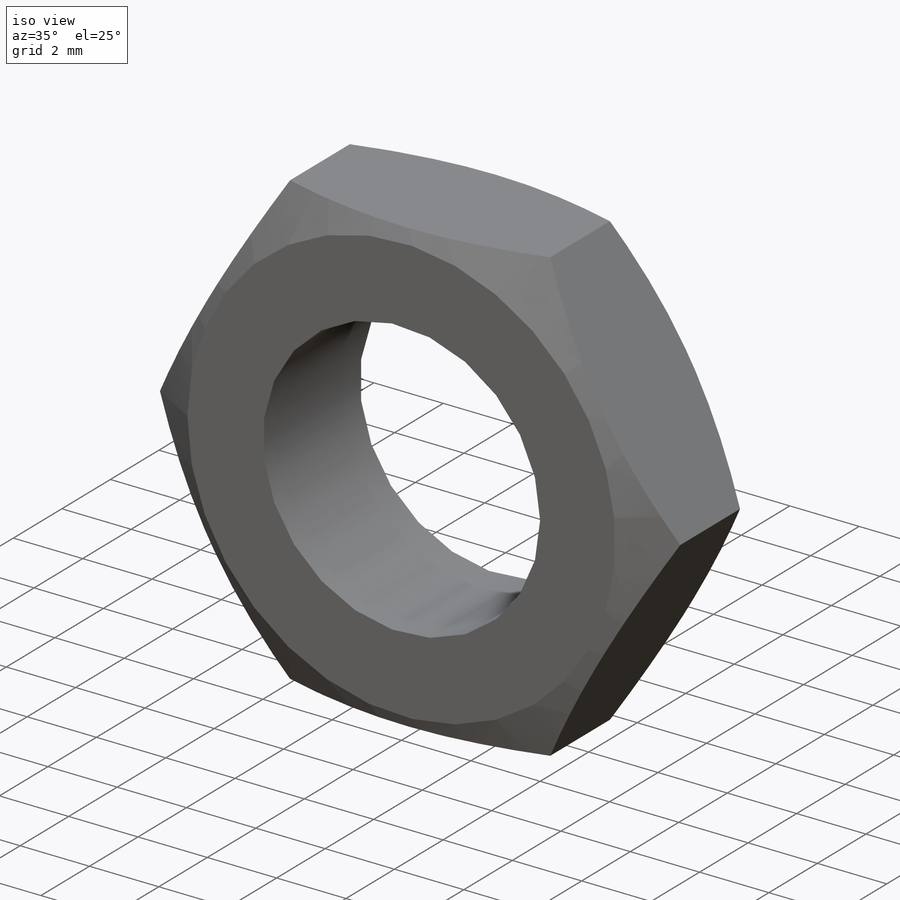
[diagram: iso view]
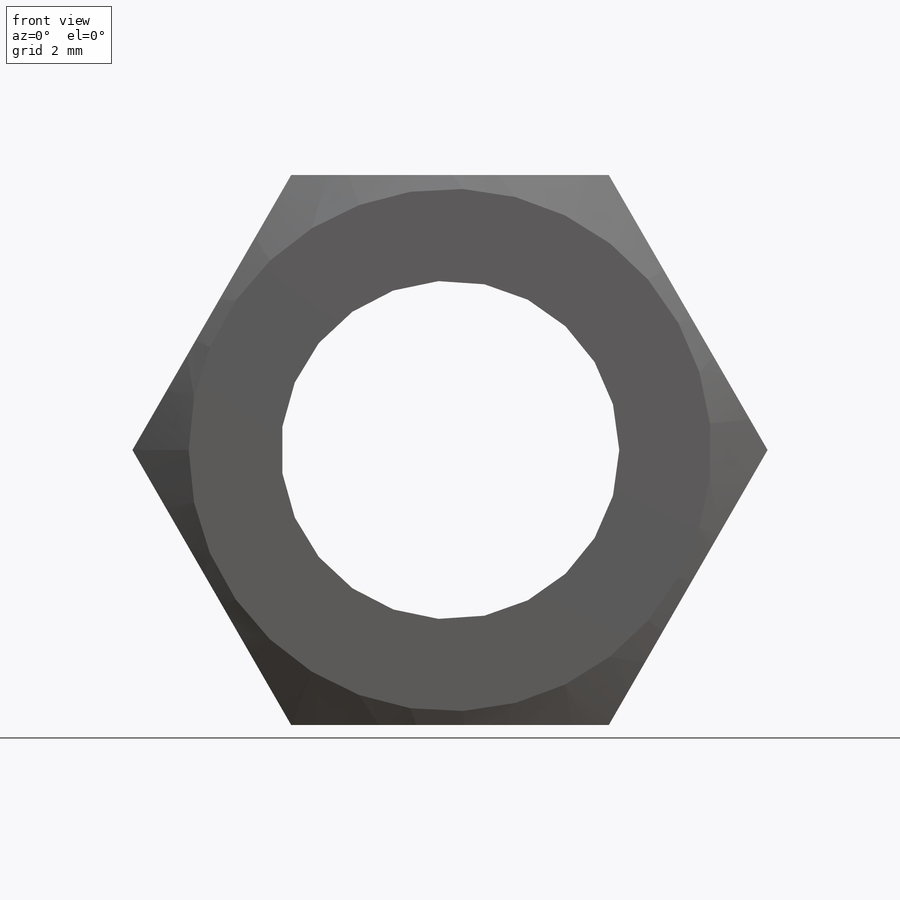
[diagram: front view]
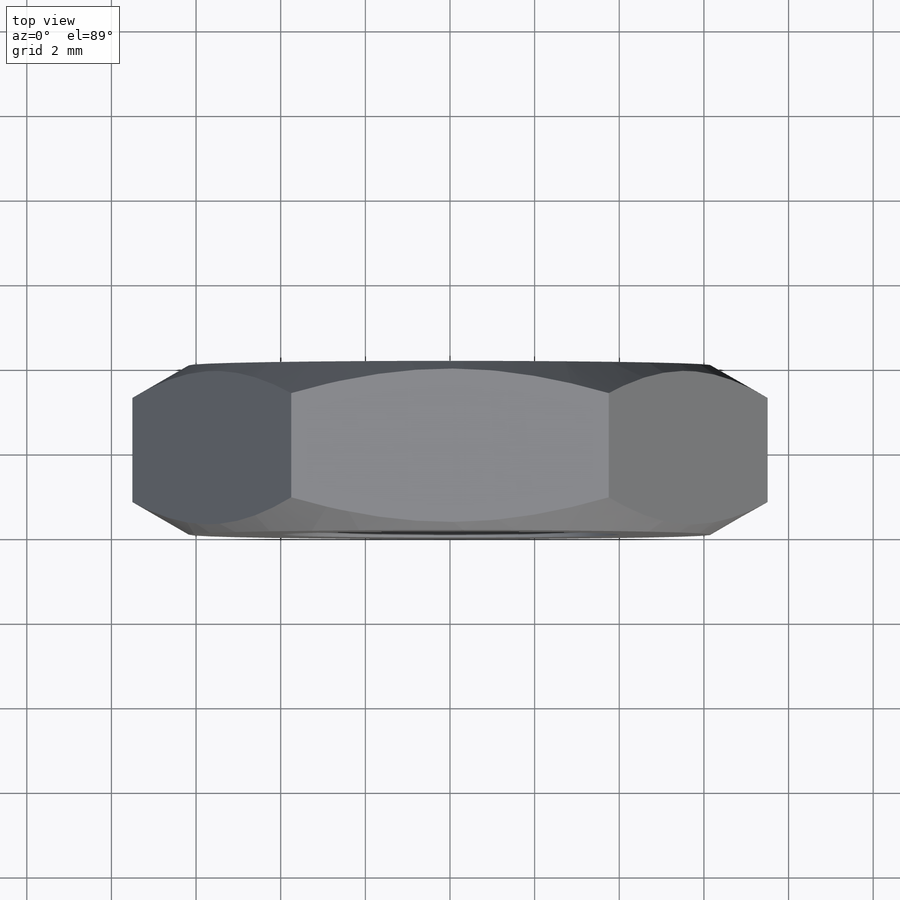
[diagram: top view]
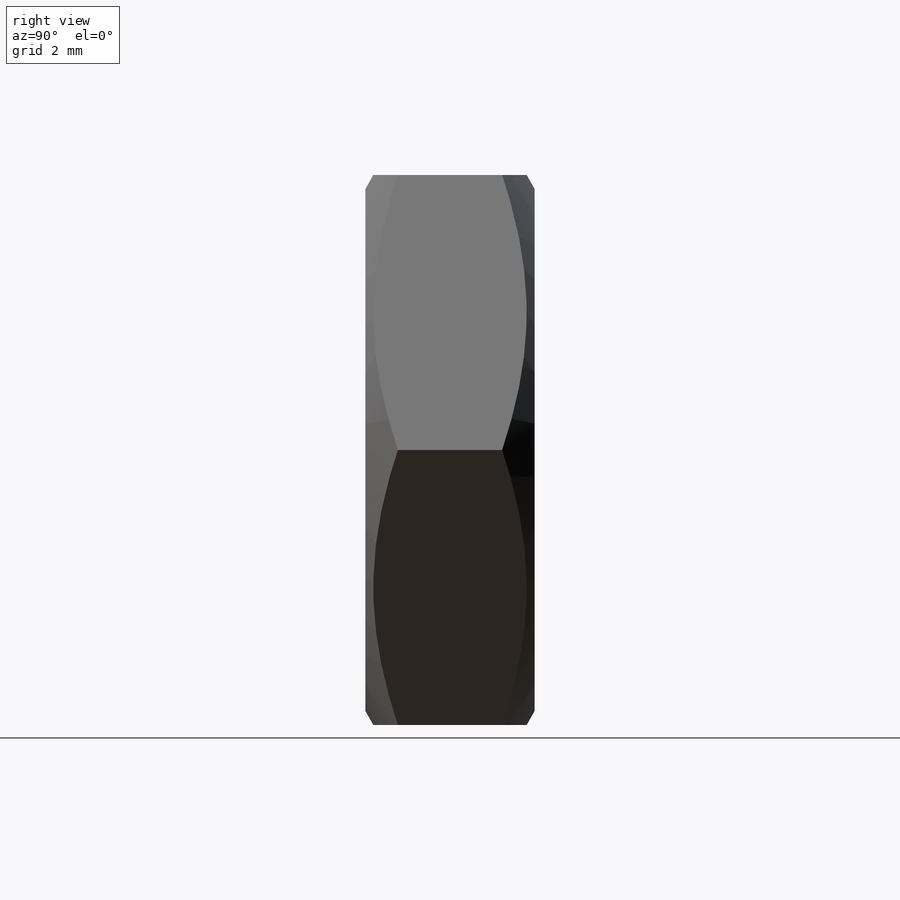
[diagram: right view]
SOLIDWORKS PART (.sldprt)
format: sldprt  version: not decoded by parser v0  size: 368,128 bytes
history: native  units: mm
features: plane x4, extrude x4, sketch x2, material x1, thread x1, cut_extrude x1, mirror x1 (+10 scaffold rows collapsed; 1 parser-record rows omitted)
feature tree (25):
  scaffold x10  (default folders/planes/origin — collapsed)
  material  "Материал <не указан>"
  plane  "Plane1"
  plane  "Plane2"
  plane  "Plane3"
  parser-record x1  (decoder bookkeeping rows leaked as tree rows — omitted from the tree; the rows remain in map.json)
  sketch  "BaseNutSke"  dims[c1.Tap_drill=14.0mm c1.Diameter=16.0mm c1.D1=50.8mm c2.D1=30.0deg c2.D2=~24.797543mm c3.D2=60.0deg c3.D3=50.8mm c4.D3=30.0deg c4.D4=~24.797543mm c5.D4=60.0deg c6.D4=~24.797543mm c7.D4=60.0deg c8.D4=~24.797543mm c9.D4=60.0deg c9.Width_flats=30.0mm c9.D1=~21.475302mm c9.D2=~21.475302mm c10.D1=~21.475302mm c10.D2=15.0mm c10.D3=15.0mm c11.D1=~24.797543mm c12.D1=120.0deg c13.D1=~23.397294mm c14.D1=120.0deg c14.D4=15.0mm c15.D1=30.0mm c15.D2=30.0mm c16.D1=~32.320508mm c16.Width_flats=24.0mm]
  extrude  "BaseNut"  [1 undecoded]
  thread  "ThreadCosmetic"  Diameter=16mm Thread_major=16mm Thickness=8mm  [1 undecoded]
  extrude  "ConfigurationName"  Depth=0 CopiedFlag=0
  extrude  "PartNumberID"  [1 undecoded]
  extrude  "ConfigurationName"  Depth=0 CopiedFlag=0
  plane  "Plane4"
  sketch  "Sketch6"  dims[D1=22.8mm]
  cut_extrude  "Cut-Extrude2"  [1 undecoded]
  mirror  "Mirror1"
decode coverage: 5 of 9 modeling features carry decoded parameters
note: ~ marks probable driven/reference dimensions
note: 4 parameter values undecoded
summary: no parameter record found for 3 features
note: suppression state not decoded; provenance and decode notes live in map.json
